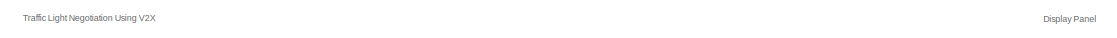
[diagram: root canvas - part 1/4, top center region]
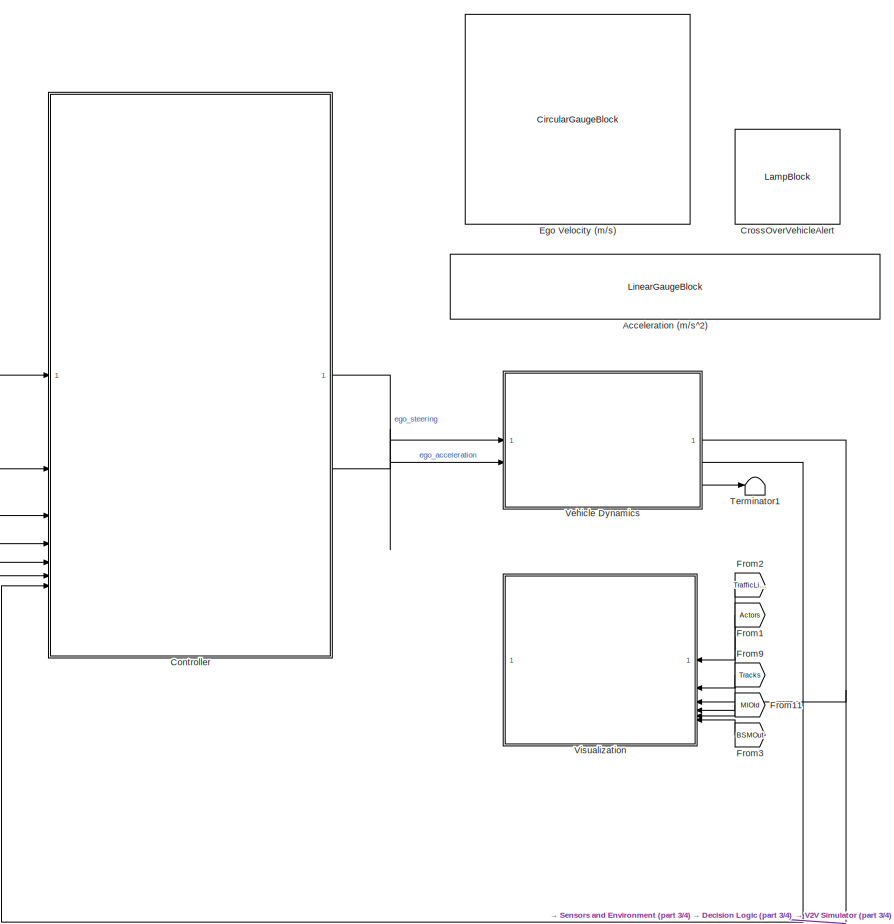
[diagram: root canvas - part 2/4, right side, full height]
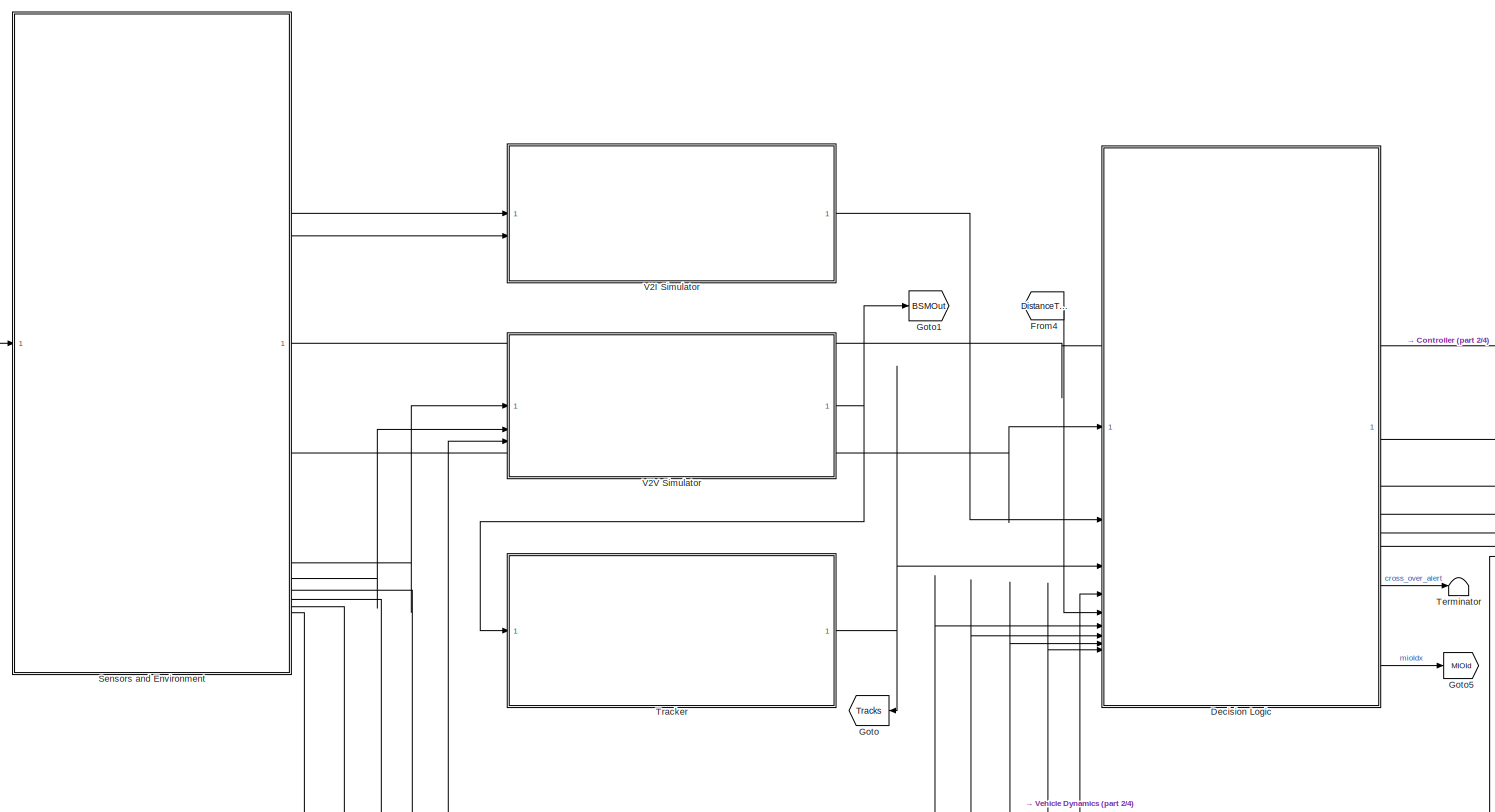
[diagram: root canvas - part 3/4, left side, full height]
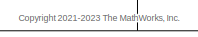
[diagram: root canvas - part 4/4, bottom center region]
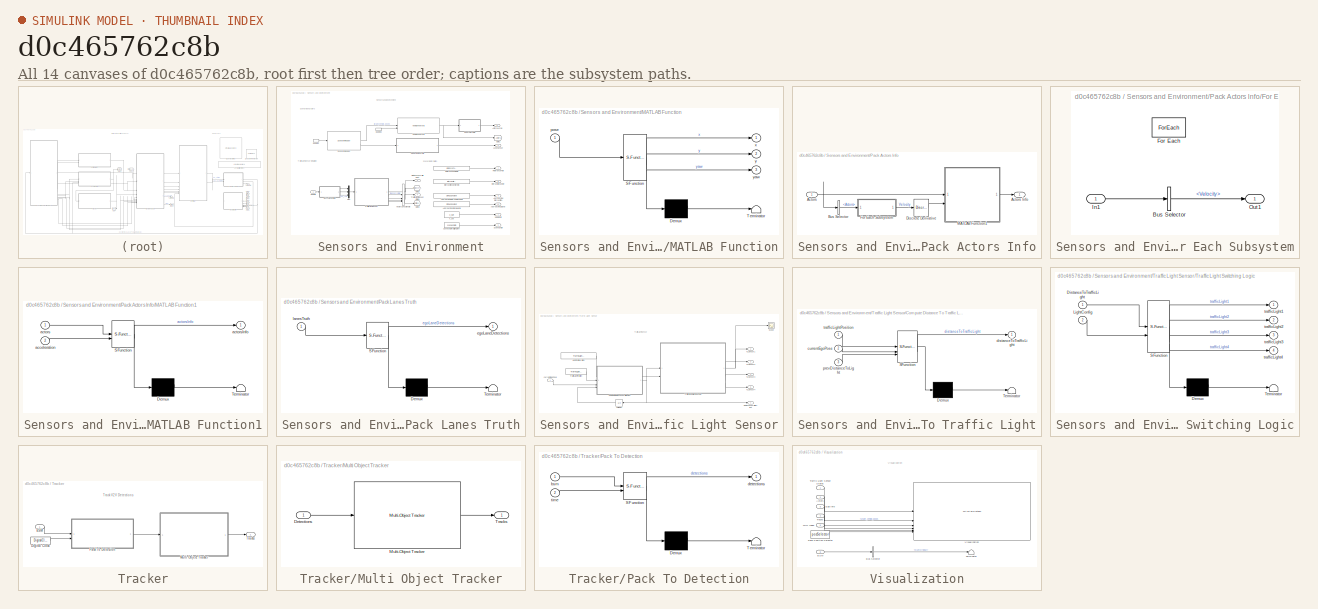
[diagram: thumbnail index - all 14 canvases of the model, root first then tree order]
MODEL slx_d0c465762c8b
KIND model
CONFIG AbsTol = auto
CONFIG EnableMultiTasking = on
CONFIG FixedStep = 0.1
CONFIG MaxStep = auto
CONFIG MinStep = auto
CONFIG PostLoadFcn = helperSLTrafficLightNegotiationWithV2XSetup
CONFIG RelTol = 1e-8
CONFIG SampleTimeConstraint = Unconstrained
CONFIG SolverName = ode23tb
CONFIG StartTime = 0.0
CONFIG StopTime = scenario.StopTime
BLOCK [LinearGaugeBlock] Acceleration (m//s^2)
  LabelPosition = Hide
  ScaleMax = 6
  ScaleMin = -6
BLOCK [ModelReference] Controller
  ModelNameDialog = TLNWithV2XController.slx
  ModelReferenceVersion = 5.0
BLOCK [LampBlock] CrossOverVehicleAlert
  Icon = Hazards
  LabelPosition = Hide
BLOCK [ModelReference] Decision Logic
  ModelNameDialog = DecisionLogic.slx
  ModelReferenceVersion = 9.1
  PortSchema = {"entries":[{"content":{"sides":[{"content":{"connectorIds":["In1","In2","In5","In3","In6","In7","In8","In9","In4"]},"type":"ConnectorPlacement.EquallySpacedRectSide","uuid":"580d7771-a392-489d-ba06-e0a23417c921"},{"content":{"connectorIds":["Out1","Out2","Out3","Out4","Out5","Out6","Out7"],"side":"RIGHT"},"type":"ConnectorPlacement.EquallySpacedRectSide","uuid":"34dc41bc-0d5b-42f7-ac4d-a18cefff16...<+474ch>
BLOCK [CircularGaugeBlock] Ego Velocity (m//s)
  LabelPosition = Hide
  ScaleMax = 50
BLOCK [From] From1
  GotoTag = Actors
  NameLocation = top
  TagVisibility = global
BLOCK [From] From11
  GotoTag = MIOId
  NameLocation = top
BLOCK [From] From2
  GotoTag = TrafficLightSensorStates
  NameLocation = top
  TagVisibility = global
BLOCK [From] From3
  GotoTag = BSMOut
  NameLocation = top
BLOCK [From] From4
  GotoTag = DistanceToTrafficLight
  TagVisibility = global
BLOCK [From] From9
  GotoTag = Tracks
  NameLocation = top
  TagVisibility = global
BLOCK [Goto] Goto
  GotoTag = Tracks
  NameLocation = top
  TagVisibility = global
BLOCK [Goto] Goto1
  GotoTag = BSMOut
BLOCK [Goto] Goto5
  GotoTag = MIOId
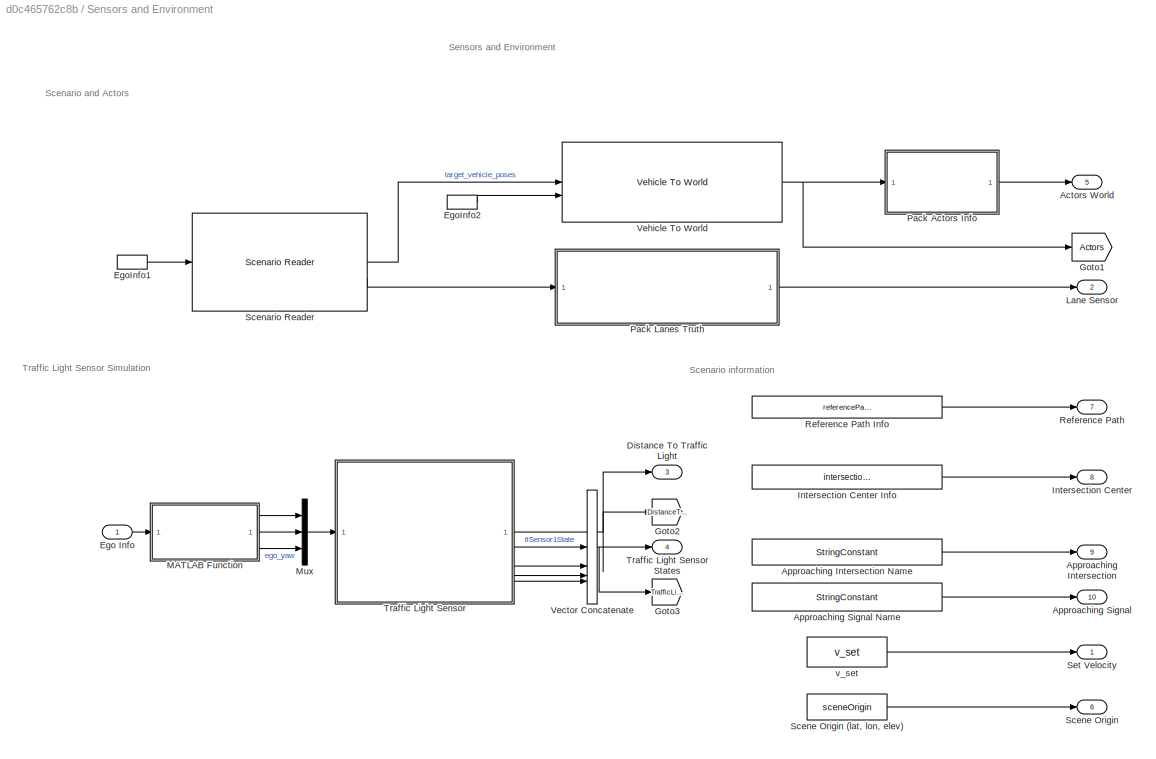
BLOCK [SubSystem] Sensors and Environment
BLOCK [Outport] Sensors and Environment/Actors World
  OutDataTypeStr = Bus: BusActorsInfo
  Port = 5
BLOCK [Outport] Sensors and Environment/Approaching Intersection
  OutDataTypeStr = string
  Port = 9
BLOCK [StringConstant] Sensors and Environment/Approaching Intersection Name
  String = approachingIntersectionName
BLOCK [Outport] Sensors and Environment/Approaching Signal
  OutDataTypeStr = string
  Port = 10
BLOCK [StringConstant] Sensors and Environment/Approaching Signal Name
  String = approachingSignalName
BLOCK [Outport] Sensors and Environment/Distance To Traffic Light
  Port = 3
BLOCK [Inport] Sensors and Environment/Ego Info
BLOCK [InportShadow] Sensors and Environment/EgoInfo1
BLOCK [InportShadow] Sensors and Environment/EgoInfo2
BLOCK [Goto] Sensors and Environment/Goto1
  GotoTag = Actors
  TagVisibility = global
BLOCK [Goto] Sensors and Environment/Goto2
  GotoTag = DistanceToTrafficLight
  TagVisibility = global
BLOCK [Goto] Sensors and Environment/Goto3
  GotoTag = TrafficLightSensorStates
  TagVisibility = global
BLOCK [Outport] Sensors and Environment/Intersection Center
  Port = 8
BLOCK [Constant] Sensors and Environment/Intersection Center Info
  AttributesFormatString = ------------------------------\n   Value = %<Value>
  SampleTime = Ts
  Value = intersectionInfo.intersectionCenter
BLOCK [Outport] Sensors and Environment/Lane Sensor
  Port = 2
  VectorParamsAs1DForOutWhenUnconnected = off
BLOCK [SubSystem] Sensors and Environment/MATLAB Function
  ErrorFcn = Stateflow.Translate.translate
  PermitHierarchicalResolution = ExplicitOnly
  SFBlockType = MATLAB Function
  TreatAsAtomicUnit = on
BLOCK [Demux] Sensors and Environment/MATLAB Function/ Demux 
  Outputs = 1
BLOCK [S-Function] Sensors and Environment/MATLAB Function/ SFunction 
  EnableBusSupport = on
  FunctionName = sf_sfun
  PortCounts = [1 4]
  SFcnIsStateOwnerBlock = off
  SFunctionDeploymentMode = off
  Tag = Stateflow S-Function 2
BLOCK [Terminator] Sensors and Environment/MATLAB Function/ Terminator 
BLOCK [Inport] Sensors and Environment/MATLAB Function/pose
BLOCK [Outport] Sensors and Environment/MATLAB Function/x
BLOCK [Outport] Sensors and Environment/MATLAB Function/y
  Port = 2
BLOCK [Outport] Sensors and Environment/MATLAB Function/yaw
  Port = 3
BLOCK [Mux] Sensors and Environment/Mux
  DisplayOption = bar
  Inputs = 3
BLOCK [SubSystem] Sensors and Environment/Pack Actors Info
BLOCK [Inport] Sensors and Environment/Pack Actors Info/Actors
BLOCK [Outport] Sensors and Environment/Pack Actors Info/Actors Info
BLOCK [BusSelector] Sensors and Environment/Pack Actors Info/Bus Selector
  OutputSignals = Actors
BLOCK [Reference] Sensors and Environment/Pack Actors Info/Discrete Derivative  REF=simulink/Discrete/Discrete Derivative
  SourceBlock = simulink/Discrete/Discrete Derivative
  SourceType = Discrete Derivative
BLOCK [SubSystem] Sensors and Environment/Pack Actors Info/For Each Subsystem
  TreatAsAtomicUnit = on
BLOCK [BusSelector] Sensors and Environment/Pack Actors Info/For Each Subsystem/Bus Selector
  OutputSignals = Velocity
BLOCK [ForEach] Sensors and Environment/Pack Actors Info/For Each Subsystem/For Each
  DisableCoverage = on
BLOCK [Inport] Sensors and Environment/Pack Actors Info/For Each Subsystem/In1
  Partition = on
  PartitionDimension = 1
  PartitionOffset = 0
  PartitionWidth = 1
BLOCK [Outport] Sensors and Environment/Pack Actors Info/For Each Subsystem/Out1
  ConcatenationDimension = 1
BLOCK [SubSystem] Sensors and Environment/Pack Actors Info/MATLAB Function1
  ErrorFcn = Stateflow.Translate.translate
  PermitHierarchicalResolution = ExplicitOnly
  SFBlockType = MATLAB Function
  TreatAsAtomicUnit = on
BLOCK [Demux] Sensors and Environment/Pack Actors Info/MATLAB Function1/ Demux 
  Outputs = 1
BLOCK [S-Function] Sensors and Environment/Pack Actors Info/MATLAB Function1/ SFunction 
  EnableBusSupport = on
  FunctionName = sf_sfun
  Parameters = actorsClassID,outputStruct
  PortCounts = [2 2]
  SFcnIsStateOwnerBlock = off
  SFunctionDeploymentMode = off
  Tag = Stateflow S-Function 6
BLOCK [Terminator] Sensors and Environment/Pack Actors Info/MATLAB Function1/ Terminator 
BLOCK [Inport] Sensors and Environment/Pack Actors Info/MATLAB Function1/acceleration
  Port = 2
BLOCK [Inport] Sensors and Environment/Pack Actors Info/MATLAB Function1/actors
BLOCK [Outport] Sensors and Environment/Pack Actors Info/MATLAB Function1/actorsInfo
BLOCK [SubSystem] Sensors and Environment/Pack Lanes Truth
  ErrorFcn = Stateflow.Translate.translate
  PermitHierarchicalResolution = ExplicitOnly
  SFBlockType = MATLAB Function
  TreatAsAtomicUnit = on
BLOCK [Demux] Sensors and Environment/Pack Lanes Truth/ Demux 
  Outputs = 1
BLOCK [S-Function] Sensors and Environment/Pack Lanes Truth/ SFunction 
  EnableBusSupport = on
  FunctionName = sf_sfun
  Parameters = detStructObj
  PortCounts = [1 2]
  SFcnIsStateOwnerBlock = off
  SFunctionDeploymentMode = off
  Tag = Stateflow S-Function 5
BLOCK [Terminator] Sensors and Environment/Pack Lanes Truth/ Terminator 
BLOCK [Outport] Sensors and Environment/Pack Lanes Truth/egoLaneDetections
BLOCK [Inport] Sensors and Environment/Pack Lanes Truth/lanesTruth
BLOCK [Outport] Sensors and Environment/Reference Path
  Port = 7
BLOCK [Constant] Sensors and Environment/Reference Path Info
  AttributesFormatString = --------------------------\n  Value = %<Value>
  OutDataTypeStr = Bus: ReferencePathInfo
  SampleTime = Ts
  Value = referencePathInfo
BLOCK [Reference] Sensors and Environment/Scenario Reader  REF=drivingscenarioandsensors/Scenario Reader
  SourceBlock = drivingscenarioandsensors/Scenario Reader
  SourceType = driving.scenario.internal.ScenarioReader
BLOCK [Outport] Sensors and Environment/Scene Origin
  Port = 6
BLOCK [Constant] Sensors and Environment/Scene Origin (lat, lon, elev)
  SampleTime = Ts
  Value = sceneOrigin
BLOCK [Outport] Sensors and Environment/Set Velocity
BLOCK [SubSystem] Sensors and Environment/Traffic Light Sensor
BLOCK [Outport] Sensors and Environment/Traffic Light Sensor States
  Port = 4
BLOCK [SubSystem] Sensors and Environment/Traffic Light Sensor/Compute Distance To Traffic Light
  ErrorFcn = Stateflow.Translate.translate
  PermitHierarchicalResolution = ExplicitOnly
  SFBlockType = MATLAB Function
  TreatAsAtomicUnit = on
BLOCK [Demux] Sensors and Environment/Traffic Light Sensor/Compute Distance To Traffic Light/ Demux 
  Outputs = 1
BLOCK [S-Function] Sensors and Environment/Traffic Light Sensor/Compute Distance To Traffic Light/ SFunction 
  EnableBusSupport = on
  FunctionName = sf_sfun
  Parameters = minTLDist
  PortCounts = [3 2]
  SFcnIsStateOwnerBlock = off
  SFunctionDeploymentMode = off
  Tag = Stateflow S-Function 7
BLOCK [Terminator] Sensors and Environment/Traffic Light Sensor/Compute Distance To Traffic Light/ Terminator 
BLOCK [Inport] Sensors and Environment/Traffic Light Sensor/Compute Distance To Traffic Light/currentEgoPose
  Port = 2
BLOCK [Outport] Sensors and Environment/Traffic Light Sensor/Compute Distance To Traffic Light/distanceToTrafficLight
BLOCK [Inport] Sensors and Environment/Traffic Light Sensor/Compute Distance To Traffic Light/prevDistanceToLight
  Port = 3
BLOCK [Inport] Sensors and Environment/Traffic Light Sensor/Compute Distance To Traffic Light/trafficLightPosition
BLOCK [Constant] Sensors and Environment/Traffic Light Sensor/LightConfiguration
  Value = TrafficLightSensorModeSelection
BLOCK [Scope] Sensors and Environment/Traffic Light Sensor/Scope
  Floating = off
  NumInputPorts = 1
  ScopeSpecificationString = Simulink.scopes.TimeScopeBlockCfg('CurrentConfiguration', extmgr.ConfigurationSet(extmgr.Configuration('Core','General UI',true),extmgr.Configuration('Core','Source UI',true),extmgr.Configuration('Sources','WiredSimulink',true,'DataLoggingVariableName','ScopeData3'),extmgr.Configuration('Visuals','Time Domain',true,'SerializedDisplays',{struct('MinYLimReal','-0.25','MaxYLimReal','2.25','YLabelReal...<+1384ch>
BLOCK [Outport] Sensors and Environment/Traffic Light Sensor/TL Sensor 1
  Port = 2
  PortDimensions = 1
BLOCK [Outport] Sensors and Environment/Traffic Light Sensor/TL Sensor 2
  Port = 3
  PortDimensions = 1
BLOCK [Outport] Sensors and Environment/Traffic Light Sensor/TL Sensor 3
  Port = 4
  PortDimensions = 1
BLOCK [Outport] Sensors and Environment/Traffic Light Sensor/TL Sensor 4
  Port = 5
  PortDimensions = 1
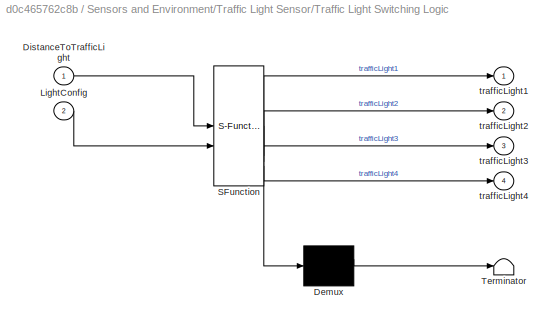
BLOCK [SubSystem] Sensors and Environment/Traffic Light Sensor/Traffic Light Switching Logic
  ErrorFcn = Stateflow.Translate.translate
  PermitHierarchicalResolution = ExplicitOnly
  PortSchema = {"entries":[{"content":{"sides":[{"content":{"connectorIds":["In2","In1"]},"type":"ConnectorPlacement.EquallySpacedRectSide","uuid":"7756c064-2a7e-4f45-95ae-d682ad49d06b"},{"content":{"connectorIds":["Out1","Out2","Out3","Out4"],"side":"RIGHT"},"type":"ConnectorPlacement.EquallySpacedRectSide","uuid":"6c34b4bd-9c36-46df-bdd3-7c2894bd4199"},{"content":{"connectorIds":[],"side":"TOP"},"type":"Connec...<+269ch>
  SFBlockType = Chart
  TreatAsAtomicUnit = on
BLOCK [Demux] Sensors and Environment/Traffic Light Sensor/Traffic Light Switching Logic/ Demux 
  Outputs = 1
BLOCK [S-Function] Sensors and Environment/Traffic Light Sensor/Traffic Light Switching Logic/ SFunction 
  EnableBusSupport = on
  FunctionName = sf_sfun
  Parameters = trafficLightStateTriggerThreshold
  PortCounts = [2 5]
  SFcnIsStateOwnerBlock = off
  SFunctionDeploymentMode = off
  Tag = Stateflow S-Function 3
BLOCK [Terminator] Sensors and Environment/Traffic Light Sensor/Traffic Light Switching Logic/ Terminator 
BLOCK [Inport] Sensors and Environment/Traffic Light Sensor/Traffic Light Switching Logic/DistanceToTrafficLight
BLOCK [Inport] Sensors and Environment/Traffic Light Sensor/Traffic Light Switching Logic/LightConfig
  Port = 2
BLOCK [Outport] Sensors and Environment/Traffic Light Sensor/Traffic Light Switching Logic/trafficLight1
BLOCK [Outport] Sensors and Environment/Traffic Light Sensor/Traffic Light Switching Logic/trafficLight2
  Port = 2
BLOCK [Outport] Sensors and Environment/Traffic Light Sensor/Traffic Light Switching Logic/trafficLight3
  Port = 3
BLOCK [Outport] Sensors and Environment/Traffic Light Sensor/Traffic Light Switching Logic/trafficLight4
  Port = 4
BLOCK [Constant] Sensors and Environment/Traffic Light Sensor/TrafficLightPosition
  Value = TrafficLightPosition
BLOCK [UnitDelay] Sensors and Environment/Traffic Light Sensor/Unit Delay
  HasFrameUpgradeWarning = on
  InitialCondition = 100
  NameLocation = top
  SampleTime = -1
BLOCK [Inport] Sensors and Environment/Traffic Light Sensor/currentEgoPose
BLOCK [Outport] Sensors and Environment/Traffic Light Sensor/distanceToTrafficLight
BLOCK [Concatenate] Sensors and Environment/Vector Concatenate
  Mode = Multidimensional array
  NumInputs = 4
BLOCK [Reference] Sensors and Environment/Vehicle To World  REF=drivingscenarioandsensors/Vehicle To World
  SourceBlock = drivingscenarioandsensors/Vehicle To World
  SourceType = driving.scenario.internal.VehicleToWorld
BLOCK [Constant] Sensors and Environment/v_set
  SampleTime = Ts
  Value = v_set
BLOCK [Terminator] Terminator
BLOCK [Terminator] Terminator1
BLOCK [SubSystem] Tracker
BLOCK [Inport] Tracker/BSM
  OutDataTypeStr = Bus: BusBSM
  SampleTime = Ts
BLOCK [DigitalClock] Tracker/Digital Clock
  SampleTime = Ts
BLOCK [SubSystem] Tracker/Multi Object Tracker
BLOCK [Inport] Tracker/Multi Object Tracker/Detections
  OutDataTypeStr = Bus: BusTargetDetections
BLOCK [Reference] Tracker/Multi Object Tracker/Multi-Object Tracker  REF=drivinglib/Multi-Object Tracker
  SourceBlock = drivinglib/Multi-Object Tracker
  SourceType = multiObjectTracker
BLOCK [Outport] Tracker/Multi Object Tracker/Tracks
BLOCK [SubSystem] Tracker/Pack To Detection
  ErrorFcn = Stateflow.Translate.translate
  PermitHierarchicalResolution = ExplicitOnly
  SFBlockType = MATLAB Function
  TreatAsAtomicUnit = on
BLOCK [Demux] Tracker/Pack To Detection/ Demux 
  Outputs = 1
BLOCK [S-Function] Tracker/Pack To Detection/ SFunction 
  EnableBusSupport = on
  FunctionName = sf_sfun
  Parameters = origin,outputStruct
  PortCounts = [2 2]
  SFcnIsStateOwnerBlock = off
  SFunctionDeploymentMode = off
  Tag = Stateflow S-Function 1
BLOCK [Terminator] Tracker/Pack To Detection/ Terminator 
BLOCK [Inport] Tracker/Pack To Detection/bsm
BLOCK [Outport] Tracker/Pack To Detection/detections
BLOCK [Inport] Tracker/Pack To Detection/time
  Port = 2
BLOCK [Outport] Tracker/Tracks
BLOCK [SubSystem] V2I Simulator
  ReferencedSubsystem = V2ISimulator
BLOCK [SubSystem] V2V Simulator
  ReferencedSubsystem = V2VSimulator
BLOCK [SubSystem] Vehicle Dynamics
  ReferencedSubsystem = BicycleWithForceInput
BLOCK [SubSystem] Visualization
BLOCK [Inport] Visualization/Actors
  Port = 2
BLOCK [Inport] Visualization/BSM
  Port = 6
BLOCK [BusSelector] Visualization/Bus Selector
  OutputSignals = NumOfBSM
BLOCK [Inport] Visualization/Ego Info
  Port = 3
BLOCK [Inport] Visualization/MIO Index
  Port = 5
BLOCK [Terminator] Visualization/Terminator
BLOCK [Constant] Visualization/Track Position Selector
  Value = posSelector
BLOCK [Inport] Visualization/Tracks
  Port = 4
BLOCK [Inport] Visualization/Traffic Light Sensor States
BLOCK [MATLABSystem] Visualization/Visualization
  EnableVisualization = on
  MaskDisplay = disp('HelperTLNwithV2XVisualization');\nport_label('input',1,'trafficLightSensorStates');\nport_label('input',2,'targetPoses');\nport_label('input',3,'egoInfo');\nport_label('input',4,'tracks');\nport_label('input',5,'mioIndex');\nport_label('input',6,'posSelector');
  MaskType = HelperTLNwithV2XVisualization
  System = HelperTLNwithV2XVisualization
  TrafficLightDisp = on
  range = V2XRange
ANNOTATION (root): <copyright redacted>
ANNOTATION (root): Traffic Light Negotiation Using V2X
ANNOTATION (root): Display Panel
ANNOTATION Sensors and Environment: Sensors and Environment
ANNOTATION Sensors and Environment: Scenario and Actors
ANNOTATION Sensors and Environment: Scenario information
ANNOTATION Sensors and Environment: Traffic Light Sensor Simulation
ANNOTATION Sensors and Environment/Traffic Light Sensor: Traffic Light Sensor
ANNOTATION Tracker: Track V2V Detections
ANNOTATION Visualization: Visualization
LINE Controller:1 -> Vehicle Dynamics:1
LINE Controller:2 -> Vehicle Dynamics:2
LINE Decision Logic:1 -> Controller:2
LINE Decision Logic:2 -> Controller:3
LINE Decision Logic:3 -> Controller:4
LINE Decision Logic:4 -> Controller:5
LINE Decision Logic:5 -> Controller:6
LINE Decision Logic:6 -> Terminator:1
LINE Decision Logic:7 -> Goto5:1
LINE From11:1 -> Visualization:5
LINE From1:1 -> Visualization:2
LINE From2:1 -> Visualization:1
LINE From3:1 -> Visualization:6
LINE From4:1 -> Decision Logic:5
LINE From9:1 -> Visualization:4
LINE Sensors and Environment/Approaching Intersection Name:1 -> Sensors and Environment/Approaching Intersection:1
LINE Sensors and Environment/Approaching Signal Name:1 -> Sensors and Environment/Approaching Signal:1
LINE Sensors and Environment/Ego Info:1 -> Sensors and Environment/MATLAB Function:1
LINE Sensors and Environment/EgoInfo1:1 -> Sensors and Environment/Scenario Reader:1
LINE Sensors and Environment/EgoInfo2:1 -> Sensors and Environment/Vehicle To World:2
LINE Sensors and Environment/Intersection Center Info:1 -> Sensors and Environment/Intersection Center:1
LINE Sensors and Environment/MATLAB Function:1 -> Sensors and Environment/Mux:1
LINE Sensors and Environment/MATLAB Function:2 -> Sensors and Environment/Mux:2
LINE Sensors and Environment/MATLAB Function:3 -> Sensors and Environment/Mux:3
LINE Sensors and Environment/Mux:1 -> Sensors and Environment/Traffic Light Sensor:1
NET Sensors and Environment/Pack Actors Info/Actors:1 -> Sensors and Environment/Pack Actors Info/Bus Selector:1, Sensors and Environment/Pack Actors Info/MATLAB Function1:1
LINE Sensors and Environment/Pack Actors Info/Bus Selector:1 -> Sensors and Environment/Pack Actors Info/For Each Subsystem:1
LINE Sensors and Environment/Pack Actors Info/Discrete Derivative:1 -> Sensors and Environment/Pack Actors Info/MATLAB Function1:2
LINE Sensors and Environment/Pack Actors Info/For Each Subsystem/Bus Selector:1 -> Sensors and Environment/Pack Actors Info/For Each Subsystem/Out1:1
LINE Sensors and Environment/Pack Actors Info/For Each Subsystem/In1:1 -> Sensors and Environment/Pack Actors Info/For Each Subsystem/Bus Selector:1
LINE Sensors and Environment/Pack Actors Info/For Each Subsystem:1 -> Sensors and Environment/Pack Actors Info/Discrete Derivative:1
LINE Sensors and Environment/Pack Actors Info/MATLAB Function1:1 -> Sensors and Environment/Pack Actors Info/Actors Info:1
LINE Sensors and Environment/Pack Actors Info:1 -> Sensors and Environment/Actors World:1
LINE Sensors and Environment/Pack Lanes Truth:1 -> Sensors and Environment/Lane Sensor:1
LINE Sensors and Environment/Reference Path Info:1 -> Sensors and Environment/Reference Path:1
LINE Sensors and Environment/Scenario Reader:1 -> Sensors and Environment/Vehicle To World:1
LINE Sensors and Environment/Scenario Reader:2 -> Sensors and Environment/Pack Lanes Truth:1
LINE Sensors and Environment/Scene Origin (lat, lon, elev):1 -> Sensors and Environment/Scene Origin:1
NET Sensors and Environment/Traffic Light Sensor/Compute Distance To Traffic Light:1 -> Sensors and Environment/Traffic Light Sensor/Traffic Light Switching Logic:1, Sensors and Environment/Traffic Light Sensor/Unit Delay:1, Sensors and Environment/Traffic Light Sensor/distanceToTrafficLight:1
LINE Sensors and Environment/Traffic Light Sensor/LightConfiguration:1 -> Sensors and Environment/Traffic Light Sensor/Traffic Light Switching Logic:2
NET Sensors and Environment/Traffic Light Sensor/Traffic Light Switching Logic:1 -> Sensors and Environment/Traffic Light Sensor/Scope:1, Sensors and Environment/Traffic Light Sensor/TL Sensor 1:1
LINE Sensors and Environment/Traffic Light Sensor/Traffic Light Switching Logic:2 -> Sensors and Environment/Traffic Light Sensor/TL Sensor 2:1
LINE Sensors and Environment/Traffic Light Sensor/Traffic Light Switching Logic:3 -> Sensors and Environment/Traffic Light Sensor/TL Sensor 3:1
LINE Sensors and Environment/Traffic Light Sensor/Traffic Light Switching Logic:4 -> Sensors and Environment/Traffic Light Sensor/TL Sensor 4:1
LINE Sensors and Environment/Traffic Light Sensor/TrafficLightPosition:1 -> Sensors and Environment/Traffic Light Sensor/Compute Distance To Traffic Light:1
LINE Sensors and Environment/Traffic Light Sensor/Unit Delay:1 -> Sensors and Environment/Traffic Light Sensor/Compute Distance To Traffic Light:3
LINE Sensors and Environment/Traffic Light Sensor/currentEgoPose:1 -> Sensors and Environment/Traffic Light Sensor/Compute Distance To Traffic Light:2
NET Sensors and Environment/Traffic Light Sensor:1 -> Sensors and Environment/Distance To Traffic Light:1, Sensors and Environment/Goto2:1
LINE Sensors and Environment/Traffic Light Sensor:2 -> Sensors and Environment/Vector Concatenate:1
LINE Sensors and Environment/Traffic Light Sensor:3 -> Sensors and Environment/Vector Concatenate:2
LINE Sensors and Environment/Traffic Light Sensor:4 -> Sensors and Environment/Vector Concatenate:3
LINE Sensors and Environment/Traffic Light Sensor:5 -> Sensors and Environment/Vector Concatenate:4
NET Sensors and Environment/Vector Concatenate:1 -> Sensors and Environment/Goto3:1, Sensors and Environment/Traffic Light Sensor States:1
NET Sensors and Environment/Vehicle To World:1 -> Sensors and Environment/Goto1:1, Sensors and Environment/Pack Actors Info:1
LINE Sensors and Environment/v_set:1 -> Sensors and Environment/Set Velocity:1
LINE Sensors and Environment:1 -> Controller:1
LINE Sensors and Environment:10 -> Decision Logic:9
LINE Sensors and Environment:2 -> Decision Logic:1
LINE Sensors and Environment:3 -> V2I Simulator:1
LINE Sensors and Environment:4 -> V2I Simulator:2
LINE Sensors and Environment:5 -> V2V Simulator:1
LINE Sensors and Environment:6 -> V2V Simulator:2
LINE Sensors and Environment:7 -> Decision Logic:6
LINE Sensors and Environment:8 -> Decision Logic:7
LINE Sensors and Environment:9 -> Decision Logic:8
LINE Tracker/BSM:1 -> Tracker/Pack To Detection:1
LINE Tracker/Digital Clock:1 -> Tracker/Pack To Detection:2
LINE Tracker/Multi Object Tracker/Detections:1 -> Tracker/Multi Object Tracker/Multi-Object Tracker:1
LINE Tracker/Multi Object Tracker/Multi-Object Tracker:1 -> Tracker/Multi Object Tracker/Tracks:1
LINE Tracker/Multi Object Tracker:1 -> Tracker/Tracks:1
LINE Tracker/Pack To Detection:1 -> Tracker/Multi Object Tracker:1
NET Tracker:1 -> Decision Logic:3, Goto:1
LINE V2I Simulator:1 -> Decision Logic:2
NET V2V Simulator:1 -> Goto1:1, Tracker:1
NET Vehicle Dynamics:1 -> Decision Logic:4, Sensors and Environment:1, V2V Simulator:3, Visualization:3
LINE Vehicle Dynamics:2 -> Controller:7
LINE Vehicle Dynamics:3 -> Terminator1:1
LINE Visualization/Actors:1 -> Visualization/Visualization:2
LINE Visualization/BSM:1 -> Visualization/Bus Selector:1
LINE Visualization/Bus Selector:1 -> Visualization/Terminator:1
LINE Visualization/Ego Info:1 -> Visualization/Visualization:3
LINE Visualization/MIO Index:1 -> Visualization/Visualization:5
LINE Visualization/Track Position Selector:1 -> Visualization/Visualization:6
LINE Visualization/Tracks:1 -> Visualization/Visualization:4
LINE Visualization/Traffic Light Sensor States:1 -> Visualization/Visualization:1
note: NET lines group one-source signal fan-out (src -> all destinations, sorted); 1:1 wires keep LINE
CHART Sensors and Environment/Pack Lanes Truth states=1 transitions=1
  STATE_LABEL 'eML_blk_kernel()'
  STATE_LABEL 'SCRIPT:\nfunction egoLaneDetections = packLanesTruth(lanesTruth, detStructObj)\n% Assign lane parameters from ground-truth lane boundaries.\n\n% Assign lane detections struct object to output variable\negoLaneDetections = detStructObj;\n\n% Find ego-vehicle lane boundary indices\nlbNum = [1, 1];\nfor j = 1:length(lanesTruth.LaneBoundaries)-1\n    yleftLane = lanesTruth.LaneBoundaries(j+1).Coordinates(1,2);\n...<+1928ch>'
CHART Sensors and Environment/Pack Actors Info/MATLAB Function1 states=1 transitions=1
  STATE_LABEL 'eML_blk_kernel()'
  STATE_LABEL 'SCRIPT:\nfunction actorsInfo = addActorProfiles(actors,acceleration,actorsClassID,outputStruct) \n    actorsInfo = outputStruct;\n    outputStruct.NumActors = actors.NumActors;\n    outputStruct.Time      = actors.Time;\n    for i = 1:actors.NumActors\n        outputStruct.Actors(i).ActorID  = actors.Actors(i).ActorID;\n        classId = actorsClassID((actorsClassID(:,1) == actors.Actors(i).ActorID) ,2);...<+763ch>'
CHART Sensors and Environment/Traffic Light Sensor/Compute Distance To Traffic Light states=1 transitions=1
  STATE_LABEL 'eML_blk_kernel()'
  STATE_LABEL 'SCRIPT:\nfunction distanceToTrafficLight   = computeDistanceToTrafficLight(trafficLightPosition, currentEgoPose, prevDistanceToLight, minTLDist)\n    % helperComputeDistanceToTrafficLight Compute distance to upcoming traffic\n    % light.\n    %\n    % Current Ego position and the upcoming traffic light position information\n    % are used for calculating distance to traffic light. \n    %\n    % NOTE: Th...<+952ch>'
CHART Tracker/Pack To Detection states=1 transitions=1
  STATE_LABEL 'eML_blk_kernel()'
  STATE_LABEL "SCRIPT:\nfunction detections = packToDetection(bsm,origin, outputStruct, time)\n\ndetections = outputStruct; \nif bsm.NumOfBSM>0\n    detections.NumDetections = bsm.NumOfBSM;\n    measCov = cast(diag([1,1,1,1,1,1]),'double');\n    measparms = struct('Frame',drivingCoordinateFrameType(1),...\n        'OriginPosition',zeros(3,1,'double'),...\n        'Orientation',eye(3,'double'),...\n        'HasVelocity',tr...<+1090ch>"
CHART Sensors and Environment/MATLAB Function states=1 transitions=1
  STATE_LABEL 'eML_blk_kernel()'
  STATE_LABEL "SCRIPT:\nfunction [x, y, yaw] = poseToSim(pose)\n\npos_Rr = pose.Position([1,2])';\ntheta = pose.Yaw;\n\npos_Cen = pos_Rr+[cosd(theta) sind(theta)]';\n\nx = pos_Cen(1);\ny = pos_Cen(2);\nyaw = pose.Yaw;\n"
CHART Sensors and Environment/Traffic Light Sensor/Traffic Light Switching Logic states=7 transitions=8
  STATE_LABEL 'STEADYRED\nentry:\ntrafficLight1 = Red;\ntrafficLight2 = Green;\ntrafficLight3 = Red;\ntrafficLight4 = Green;'
  STATE_LABEL 'START\nentry:\ntrafficLight1 = Red;\ntrafficLight2 = Red;\ntrafficLight3 = Red;\ntrafficLight4 = Red;'
  STATE_LABEL 'STEADYGREEN\nentry:\ntrafficLight1 = Green;\ntrafficLight2 = Red;\ntrafficLight3 = Green;\ntrafficLight4 = Red;'
  STATE_LABEL 'TRAFFICLIGHT1GREEN\nentry:\ntrafficLight1 = Green;\ntrafficLight2 = Red;\ntrafficLight3 = Green;\ntrafficLight4 = Red;'
  STATE_LABEL 'TRAFFICLIGHT1YELLOW\nentry:\ntrafficLight1 = Yellow;\ntrafficLight2 = Red;\ntrafficLight3 = Yellow;\ntrafficLight4 = Red;'
  STATE_LABEL 'TRAFFICLIGHT2GREEN\nentry:\ntrafficLight1 = Red;\ntrafficLight2 = Green;\ntrafficLight3 = Red;\ntrafficLight4 = Green;'
  STATE_LABEL 'TRAFFICLIGHT2YELLOW\nentry:\ntrafficLight1 = Red;\ntrafficLight2 = Yellow;\ntrafficLight3 = Red;\ntrafficLight4 = Yellow;'
CHART  states=0 transitions=0
CHART  states=0 transitions=0
CHART  states=0 transitions=0
CHART  states=0 transitions=0
CHART  states=0 transitions=0
CHART  states=0 transitions=0
